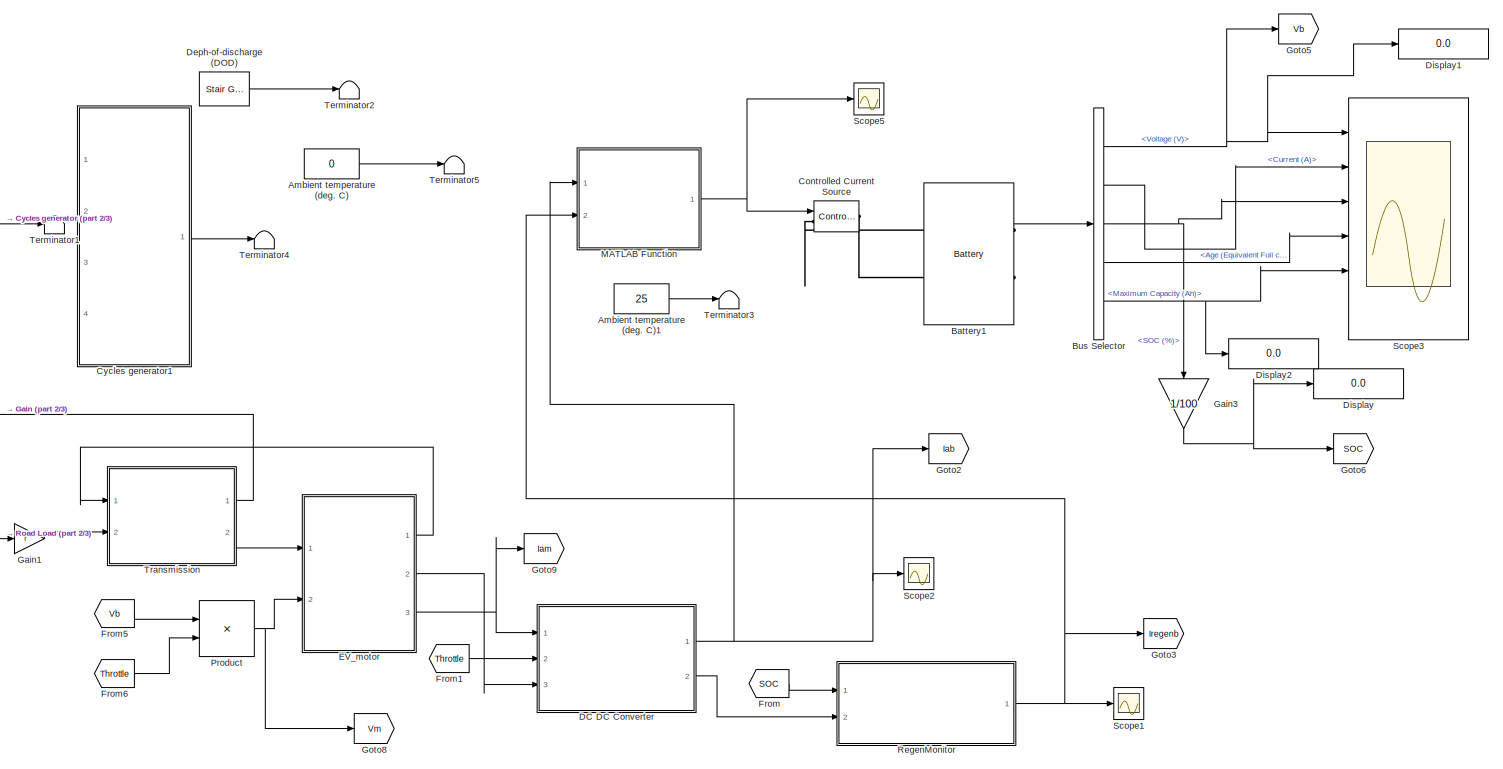
[diagram: root canvas - part 1/3, middle right region]
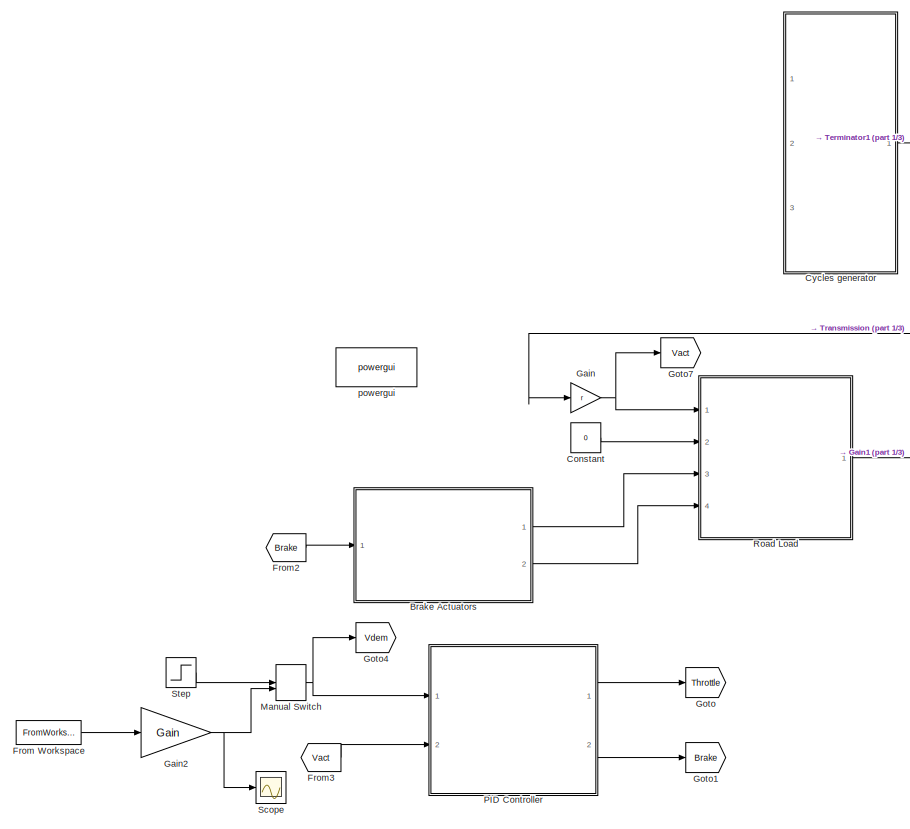
[diagram: root canvas - part 2/3, middle left region]
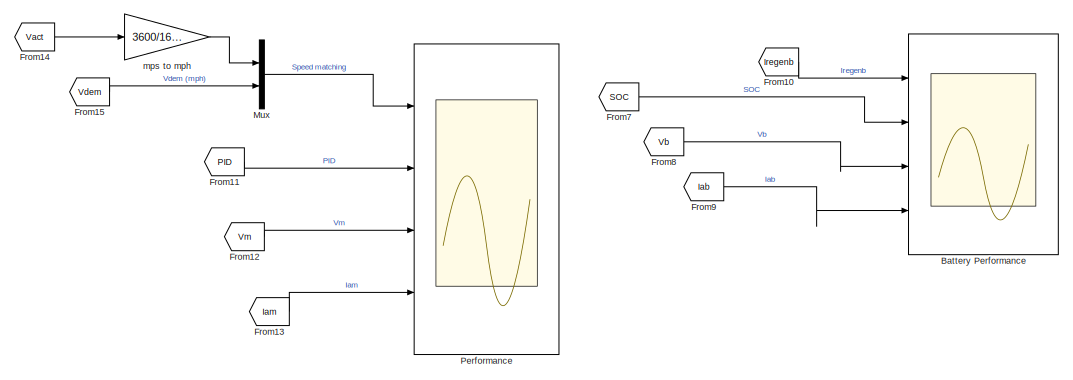
[diagram: root canvas - part 3/3, bottom right region]
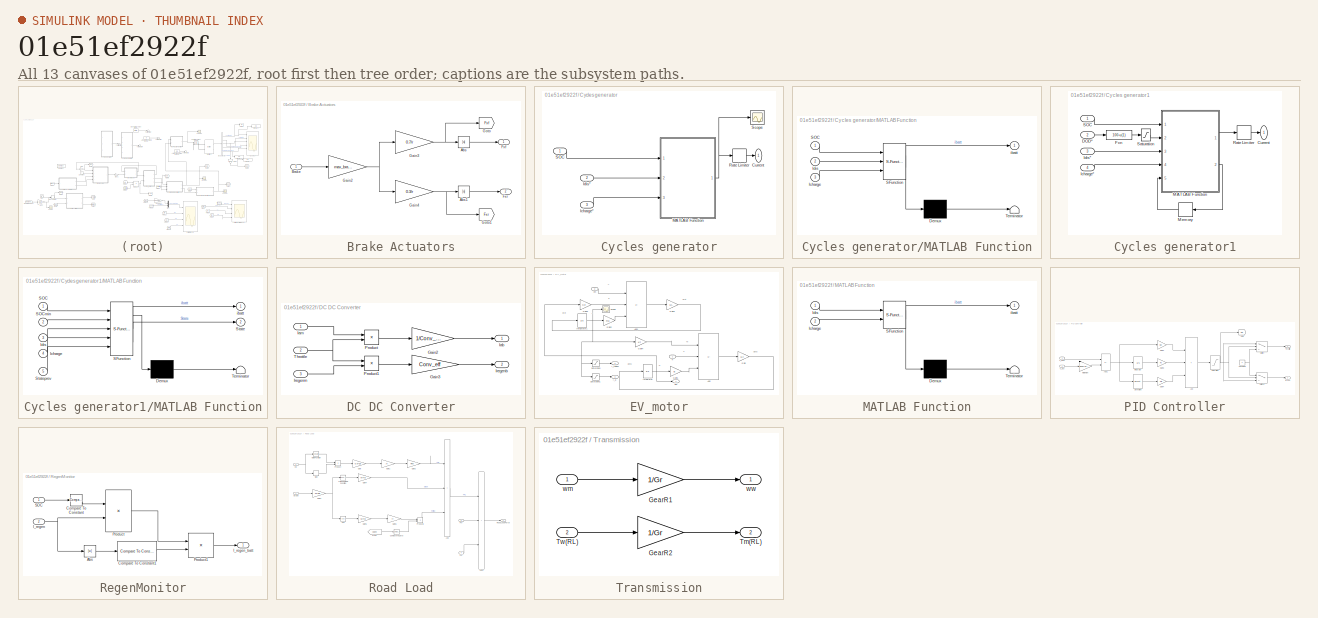
[diagram: thumbnail index - all 13 canvases of the model, root first then tree order]
MODEL slx_01e51ef2922f
KIND model
CONFIG AbsTol = auto
CONFIG EnableMultiTasking = off
CONFIG FixedStep = auto
CONFIG MaxStep = 1
CONFIG MinStep = auto
CONFIG RelTol = 1e-3
CONFIG SampleTimeConstraint = Unconstrained
CONFIG SolverName = ode23t
CONFIG StartTime = 0.0
CONFIG StopTime = simtime
BLOCK [Scope]  Performance
  Floating = off
  NumInputPorts = 4
  Ports = [4]
  ScopeSpecificationString = Simulink.scopes.TimeScopeBlockCfg('CurrentConfiguration', extmgr.ConfigurationSet(extmgr.Configuration('Core','General UI',true),extmgr.Configuration('Core','Source UI',true),extmgr.Configuration('Sources','WiredSimulink',true,'DataLoggingVariableName','ScopeData4'),extmgr.Configuration('Visuals','Time Domain',true,'SerializedDisplays',{struct('MinYLimReal','-7.13834','MaxYLimReal','63.80769','YLa...<+3456ch>
BLOCK [Constant] Ambient temperature (deg. C)
  Value = 0
BLOCK [Constant] Ambient temperature (deg. C)1
  Value = 25
BLOCK [Scope] Battery Performance
  Floating = off
  NumInputPorts = 4
  Ports = [4]
  ScopeSpecificationString = Simulink.scopes.TimeScopeBlockCfg('CurrentConfiguration', extmgr.ConfigurationSet(extmgr.Configuration('Core','General UI',true),extmgr.Configuration('Core','Source UI',true),extmgr.Configuration('Sources','WiredSimulink',true,'DataLoggingVariableName','ScopeData3'),extmgr.Configuration('Visuals','Time Domain',true,'SerializedDisplays',{struct('MinYLimReal','-1.00000','MaxYLimReal','1.00000','YLab...<+3699ch>
BLOCK [Reference] Battery1  REF=spsBatteryLib/Battery
  NameLocation = top
  Ports = [0, 1, 0, 0, 0, 2]
  SourceBlock = spsBatteryLib/Battery
  SourceProductBaseCode = PS
  SourceType = Battery
BLOCK [SubSystem] Brake Actuators
  Ports = [1, 2]
  RequestExecContextInheritance = off
BLOCK [Abs] Brake Actuators/Abs
  SaturateOnIntegerOverflow = off
BLOCK [Abs] Brake Actuators/Abs1
  SaturateOnIntegerOverflow = off
BLOCK [Inport] Brake Actuators/Brake
BLOCK [Outport] Brake Actuators/Fxf
BLOCK [Outport] Brake Actuators/Fxr
  Port = 2
BLOCK [Gain] Brake Actuators/Gain2
  Gain = max_brakeT
BLOCK [Gain] Brake Actuators/Gain3
  Gain = 0.7/r
BLOCK [Gain] Brake Actuators/Gain4
  Gain = 0.3/r
BLOCK [Goto] Brake Actuators/Goto
  GotoTag = Fxf
BLOCK [Goto] Brake Actuators/Goto1
  GotoTag = Fxr
BLOCK [BusSelector] Bus Selector
  OutputSignals = Voltage (V),Current (A),SOC (%),Age (Equivalent Full cycles),Maximum Capacity  (Ah)
  Ports = [1, 5]
BLOCK [Constant] Constant
  Value = 0
BLOCK [Reference] Controlled Current Source  REF=spsControlledCurrentSourceLib/Controlled Current Source
  Ports = [1, 0, 0, 0, 0, 1, 1]
  SourceBlock = spsControlledCurrentSourceLib/Controlled Current Source
  SourceProductBaseCode = PS
  SourceType = Controlled Current Source
BLOCK [SubSystem] Cycles generator
  NameLocation = top
  Ports = [3, 1]
  RequestExecContextInheritance = off
BLOCK [Outport] Cycles generator/Current
  NameLocation = top
  VectorParamsAs1DForOutWhenUnconnected = off
BLOCK [Inport] Cycles generator/Icharge*
  Port = 3
BLOCK [Inport] Cycles generator/Idis*
  Port = 2
BLOCK [SubSystem] Cycles generator/MATLAB Function
  ErrorFcn = Stateflow.Translate.translate
  PermitHierarchicalResolution = ExplicitOnly
  Ports = [3, 1]
  RequestExecContextInheritance = off
  SFBlockType = MATLAB Function
  TreatAsAtomicUnit = on
BLOCK [Demux] Cycles generator/MATLAB Function/ Demux 
  Outputs = 1
  Ports = [1, 1]
BLOCK [S-Function] Cycles generator/MATLAB Function/ SFunction 
  EnableBusSupport = on
  FunctionName = sf_sfun
  PortCounts = [3 2]
  Ports = [3, 2]
  SFcnIsStateOwnerBlock = off
  SFunctionDeploymentMode = off
  Tag = Stateflow S-Function 2
BLOCK [Terminator] Cycles generator/MATLAB Function/ Terminator 
BLOCK [Inport] Cycles generator/MATLAB Function/Icharge
  Port = 3
BLOCK [Inport] Cycles generator/MATLAB Function/Idis
  Port = 2
BLOCK [Inport] Cycles generator/MATLAB Function/SOC
BLOCK [Outport] Cycles generator/MATLAB Function/ibatt
  VectorParamsAs1DForOutWhenUnconnected = off
BLOCK [RateLimiter] Cycles generator/Rate Limiter
  FallingSlewLimit = -1000
  RisingSlewLimit = 1000
  SampleTimeMode = inherited
BLOCK [Inport] Cycles generator/SOC
BLOCK [Scope] Cycles generator/Scope
  Floating = off
  NumInputPorts = 1
  Ports = [1]
  ScopeSpecificationString = Simulink.scopes.TimeScopeBlockCfg('CurrentConfiguration', extmgr.ConfigurationSet(extmgr.Configuration('Core','General UI',true),extmgr.Configuration('Core','Source UI',true),extmgr.Configuration('Sources','WiredSimulink',true,'DataLoggingVariableName','ScopeData3'),extmgr.Configuration('Visuals','Time Domain',true,'SerializedDisplays',{struct('MinYLimReal','-1.00000','MaxYLimReal','1.00000','YLab...<+1374ch>
BLOCK [SubSystem] Cycles generator1
  NameLocation = top
  Ports = [4, 1]
  RequestExecContextInheritance = off
BLOCK [Outport] Cycles generator1/Current
  NameLocation = top
  VectorParamsAs1DForOutWhenUnconnected = off
BLOCK [Inport] Cycles generator1/DOD*
  Port = 2
BLOCK [Fcn] Cycles generator1/Fcn
  Expr = 100-u(1)
BLOCK [Inport] Cycles generator1/Icharge*
  Port = 4
BLOCK [Inport] Cycles generator1/Idis*
  Port = 3
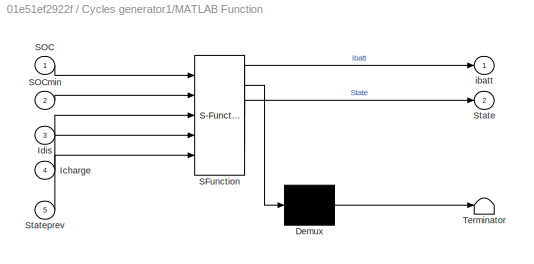
BLOCK [SubSystem] Cycles generator1/MATLAB Function
  ErrorFcn = Stateflow.Translate.translate
  PermitHierarchicalResolution = ExplicitOnly
  Ports = [5, 2]
  RequestExecContextInheritance = off
  SFBlockType = MATLAB Function
  TreatAsAtomicUnit = on
BLOCK [Demux] Cycles generator1/MATLAB Function/ Demux 
  Outputs = 1
  Ports = [1, 1]
BLOCK [S-Function] Cycles generator1/MATLAB Function/ SFunction 
  EnableBusSupport = on
  FunctionName = sf_sfun
  PortCounts = [5 3]
  Ports = [5, 3]
  SFcnIsStateOwnerBlock = off
  SFunctionDeploymentMode = off
  Tag = Stateflow S-Function 1
BLOCK [Terminator] Cycles generator1/MATLAB Function/ Terminator 
BLOCK [Inport] Cycles generator1/MATLAB Function/Icharge
  Port = 4
BLOCK [Inport] Cycles generator1/MATLAB Function/Idis
  Port = 3
BLOCK [Inport] Cycles generator1/MATLAB Function/SOC
BLOCK [Inport] Cycles generator1/MATLAB Function/SOCmin
  Port = 2
BLOCK [Outport] Cycles generator1/MATLAB Function/State
  Port = 2
  VectorParamsAs1DForOutWhenUnconnected = off
BLOCK [Inport] Cycles generator1/MATLAB Function/Stateprev
  Port = 5
BLOCK [Outport] Cycles generator1/MATLAB Function/ibatt
  VectorParamsAs1DForOutWhenUnconnected = off
BLOCK [Memory] Cycles generator1/Memory
  InitialCondition = 1
BLOCK [RateLimiter] Cycles generator1/Rate Limiter
  FallingSlewLimit = -1000
  RisingSlewLimit = 1000
  SampleTimeMode = inherited
BLOCK [Inport] Cycles generator1/SOC
BLOCK [Saturate] Cycles generator1/Saturation
  LowerLimit = 1
  UpperLimit = 98
BLOCK [SubSystem] DC DC Converter
  Ports = [3, 2]
  RequestExecContextInheritance = off
BLOCK [Gain] DC DC Converter/Gain2
  Gain = 1/Conv_eff
BLOCK [Gain] DC DC Converter/Gain3
  Gain = Conv_eff
BLOCK [Outport] DC DC Converter/Iab
BLOCK [Inport] DC DC Converter/Iam
BLOCK [Outport] DC DC Converter/Iregenb
  Port = 2
BLOCK [Inport] DC DC Converter/Iregenm
  Port = 3
BLOCK [Product] DC DC Converter/Product
  Ports = [2, 1]
BLOCK [Product] DC DC Converter/Product1
  Ports = [2, 1]
BLOCK [Inport] DC DC Converter/Throttle
  Port = 2
BLOCK [Reference] Deph-of-discharge (DOD)  REF=spsStairGeneratorLib/Stair
Generator
  Ports = [0, 1]
  SourceBlock = spsStairGeneratorLib/Stair\nGenerator
  SourceProductBaseCode = PS
  SourceType = Stair Generator
BLOCK [Display] Display
  Decimation = 1
  Ports = [1]
BLOCK [Display] Display1
  Decimation = 1
  Ports = [1]
BLOCK [Display] Display2
  Decimation = 1
  Ports = [1]
BLOCK [SubSystem] EV_motor
  Ports = [2, 3]
  RequestExecContextInheritance = off
BLOCK [Sum] EV_motor/Add
  IconShape = rectangular
  Inputs = +--
  Ports = [3, 1]
BLOCK [Sum] EV_motor/Add1
  IconShape = rectangular
  Inputs = +--
  Ports = [3, 1]
BLOCK [Gain] EV_motor/Gain
  Gain = 1/J
BLOCK [Gain] EV_motor/Gain1
  Gain = B
BLOCK [Gain] EV_motor/Gain2
  Gain = Ra
BLOCK [Gain] EV_motor/Gain3
  Gain = 1/L
BLOCK [Gain] EV_motor/Gain4
  Gain = Kt
BLOCK [Gain] EV_motor/Gain5
  Gain = Ke
BLOCK [Outport] EV_motor/I_a
  Port = 3
BLOCK [Outport] EV_motor/I_regen
  Port = 2
BLOCK [Integrator] EV_motor/Integrator
  Ports = [1, 1]
BLOCK [Integrator] EV_motor/Integrator1
  Ports = [1, 1]
BLOCK [Saturate] EV_motor/Saturation
  LowerLimit = -inf
  UpperLimit = 0
BLOCK [Saturate] EV_motor/Saturation1
  LowerLimit = 0
  UpperLimit = inf
BLOCK [Scope] EV_motor/Scope
  Floating = off
  NumInputPorts = 1
  Ports = [1]
  ScopeSpecificationString = Simulink.scopes.TimeScopeBlockCfg('CurrentConfiguration', extmgr.ConfigurationSet(extmgr.Configuration('Core','General UI',true),extmgr.Configuration('Core','Source UI',true),extmgr.Configuration('Sources','WiredSimulink',true),extmgr.Configuration('Visuals','Time Domain',true,'SerializedDisplays',{struct('MinYLimReal','-246.13568','MaxYLimReal','293.10629','YLabelReal','','MinYLimMag',' 0.00000',...<+1345ch>
BLOCK [Inport] EV_motor/Tl
BLOCK [Inport] EV_motor/Vm
  Port = 2
BLOCK [Outport] EV_motor/wm
BLOCK [From] From
  GotoTag = SOC
BLOCK [FromWorkspace] From Workspace
  VariableName = cyc_mph_2
BLOCK [From] From1
  GotoTag = Throttle
  TagVisibility = global
BLOCK [From] From10
  GotoTag = Iregenb
BLOCK [From] From11
  GotoTag = PID
  TagVisibility = global
BLOCK [From] From12
  GotoTag = Vm
  TagVisibility = global
BLOCK [From] From13
  GotoTag = Iam
  TagVisibility = global
BLOCK [From] From14
  GotoTag = Vact
  TagVisibility = global
BLOCK [From] From15
  GotoTag = Vdem
  TagVisibility = global
BLOCK [From] From2
  GotoTag = Brake
  TagVisibility = global
BLOCK [From] From3
  GotoTag = Vact
  TagVisibility = global
BLOCK [From] From5
  GotoTag = Vb
BLOCK [From] From6
  GotoTag = Throttle
  TagVisibility = global
BLOCK [From] From7
  GotoTag = SOC
BLOCK [From] From8
  GotoTag = Vb
BLOCK [From] From9
  GotoTag = Iab
BLOCK [Gain] Gain
  Gain = r
BLOCK [Gain] Gain1
  Gain = r
BLOCK [Gain] Gain2
  Gain = Gain
BLOCK [Gain] Gain3
  Gain = 1/100
  NameLocation = left
BLOCK [Goto] Goto
  GotoTag = Throttle
  TagVisibility = global
BLOCK [Goto] Goto1
  GotoTag = Brake
  TagVisibility = global
BLOCK [Goto] Goto2
  GotoTag = Iab
BLOCK [Goto] Goto3
  GotoTag = Iregenb
BLOCK [Goto] Goto4
  GotoTag = Vdem
  TagVisibility = global
BLOCK [Goto] Goto5
  GotoTag = Vb
BLOCK [Goto] Goto6
  GotoTag = SOC
BLOCK [Goto] Goto7
  GotoTag = Vact
  TagVisibility = global
BLOCK [Goto] Goto8
  GotoTag = Vm
  TagVisibility = global
BLOCK [Goto] Goto9
  GotoTag = Iam
  TagVisibility = global
BLOCK [SubSystem] MATLAB Function
  ErrorFcn = Stateflow.Translate.translate
  PermitHierarchicalResolution = ExplicitOnly
  Ports = [2, 1]
  RequestExecContextInheritance = off
  SFBlockType = MATLAB Function
  TreatAsAtomicUnit = on
BLOCK [Demux] MATLAB Function/ Demux 
  Outputs = 1
  Ports = [1, 1]
BLOCK [S-Function] MATLAB Function/ SFunction 
  EnableBusSupport = on
  FunctionName = sf_sfun
  PortCounts = [2 2]
  Ports = [2, 2]
  SFcnIsStateOwnerBlock = off
  SFunctionDeploymentMode = off
  Tag = Stateflow S-Function 3
BLOCK [Terminator] MATLAB Function/ Terminator 
BLOCK [Inport] MATLAB Function/Icharge
  Port = 2
BLOCK [Inport] MATLAB Function/Idis
BLOCK [Outport] MATLAB Function/ibatt
BLOCK [ManualSwitch] Manual Switch
  CurrentSetting = 0
BLOCK [Mux] Mux
  DisplayOption = bar
  Inputs = 2
  Ports = [2, 1]
BLOCK [SubSystem] PID Controller
  Ports = [2, 2]
  RequestExecContextInheritance = off
BLOCK [Sum] PID Controller/Add
  IconShape = rectangular
  Inputs = +++
  Ports = [3, 1]
BLOCK [Sum] PID Controller/Add1
  IconShape = rectangular
  Inputs = +-
  Ports = [2, 1]
BLOCK [Outport] PID Controller/Brake
  Port = 2
BLOCK [Constant] PID Controller/Constant1
  Value = 0
BLOCK [Derivative] PID Controller/Derivative
BLOCK [Gain] PID Controller/Gain2
  Gain = Kp
BLOCK [Gain] PID Controller/Gain3
  Gain = Ki
BLOCK [Gain] PID Controller/Gain4
  Gain = Kd
BLOCK [Goto] PID Controller/Goto
  GotoTag = PID
  TagVisibility = global
BLOCK [Integrator] PID Controller/Integrator
  Ports = [1, 1]
BLOCK [Saturate] PID Controller/Saturation
  LowerLimit = -1
  UpperLimit = 1
BLOCK [Switch] PID Controller/Switch
  Criteria = u2 > Threshold
  InputSameDT = off
  SaturateOnIntegerOverflow = off
BLOCK [Switch] PID Controller/Switch1
  Criteria = u2 > Threshold
  InputSameDT = off
  SaturateOnIntegerOverflow = off
BLOCK [Outport] PID Controller/Throttle
BLOCK [Inport] PID Controller/V_act
  Port = 2
BLOCK [Inport] PID Controller/V_dem
BLOCK [Gain] PID Controller/m//s to mph
  Gain = 3600/1600
BLOCK [Product] Product
  Ports = [2, 1]
BLOCK [SubSystem] RegenMonitor
  Ports = [2, 1]
  RequestExecContextInheritance = off
BLOCK [Abs] RegenMonitor/Abs
  SaturateOnIntegerOverflow = off
BLOCK [Reference] RegenMonitor/Compare To Constant  REF=simulink/Logic and Bit
Operations/Compare
To Constant
  Ports = [1, 1]
  SourceBlock = simulink/Logic and Bit\nOperations/Compare\nTo Constant
  SourceProductBaseCode = SL
  SourceType = Compare To Constant
BLOCK [Reference] RegenMonitor/Compare To Constant1  REF=simulink/Logic and Bit
Operations/Compare
To Constant
  Ports = [1, 1]
  SourceBlock = simulink/Logic and Bit\nOperations/Compare\nTo Constant
  SourceProductBaseCode = SL
  SourceType = Compare To Constant
BLOCK [Inport] RegenMonitor/I_regen
  Port = 2
BLOCK [Outport] RegenMonitor/I_regen_batt
BLOCK [Product] RegenMonitor/Product
  Ports = [2, 1]
BLOCK [Product] RegenMonitor/Product1
  Ports = [2, 1]
BLOCK [Inport] RegenMonitor/SOC
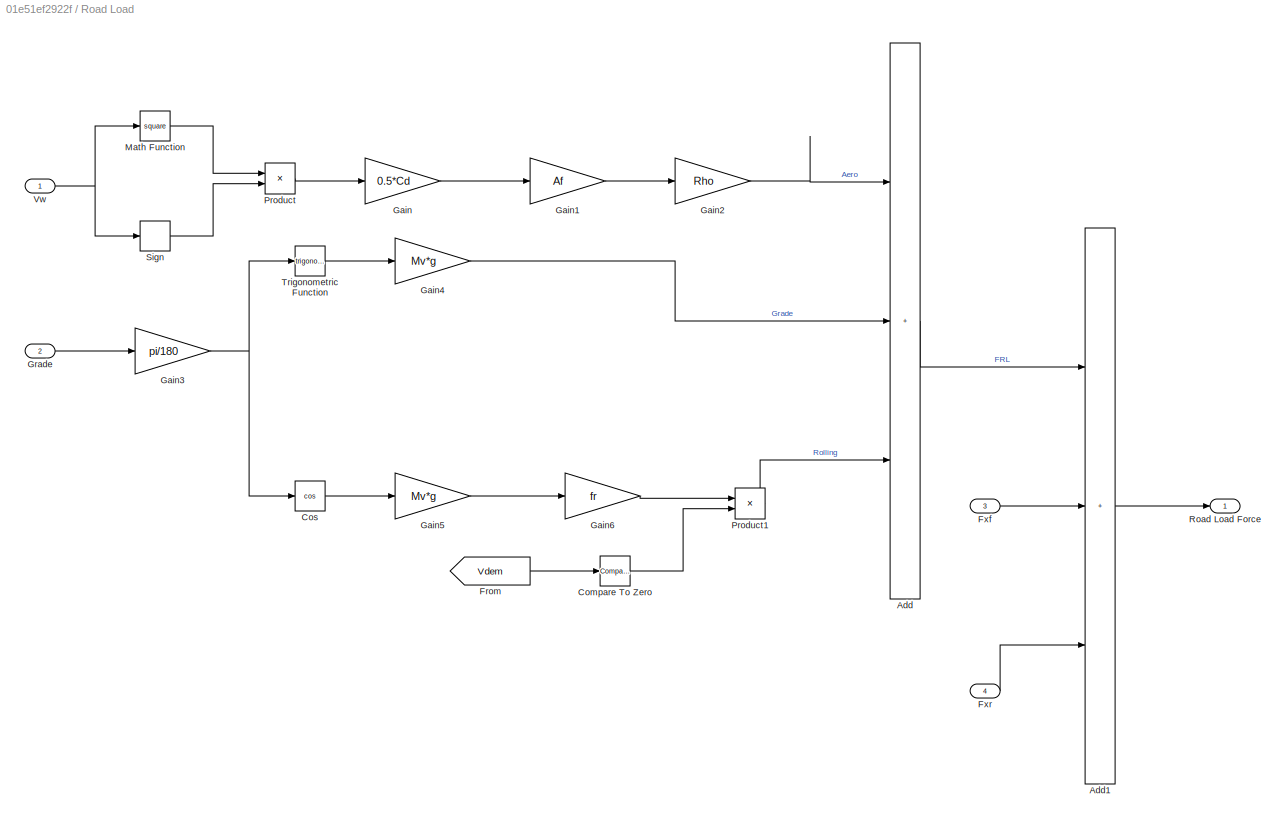
BLOCK [SubSystem] Road Load
  Ports = [4, 1]
  RequestExecContextInheritance = off
BLOCK [Sum] Road Load/Add
  IconShape = rectangular
  Inputs = +++
  Ports = [3, 1]
BLOCK [Sum] Road Load/Add1
  IconShape = rectangular
  Inputs = +++
  Ports = [3, 1]
BLOCK [Reference] Road Load/Compare To Zero  REF=simulink/Logic and Bit
Operations/Compare
To Zero
  Ports = [1, 1]
  SourceBlock = simulink/Logic and Bit\nOperations/Compare\nTo Zero
  SourceProductBaseCode = SL
  SourceType = Compare To Zero
BLOCK [Trigonometry] Road Load/Cos
  Operator = cos
  Ports = [1, 1]
BLOCK [From] Road Load/From
  GotoTag = Vdem
  TagVisibility = global
BLOCK [Inport] Road Load/Fxf
  Port = 3
BLOCK [Inport] Road Load/Fxr
  Port = 4
BLOCK [Gain] Road Load/Gain
  Gain = 0.5*Cd
BLOCK [Gain] Road Load/Gain1
  Gain = Af
BLOCK [Gain] Road Load/Gain2
  Gain = Rho
BLOCK [Gain] Road Load/Gain3
  Gain = pi/180
BLOCK [Gain] Road Load/Gain4
  Gain = Mv*g
BLOCK [Gain] Road Load/Gain5
  Gain = Mv*g
BLOCK [Gain] Road Load/Gain6
  Gain = fr
BLOCK [Inport] Road Load/Grade
  Port = 2
BLOCK [Math] Road Load/Math Function
  Operator = square
  Ports = [1, 1]
BLOCK [Product] Road Load/Product
  Ports = [2, 1]
BLOCK [Product] Road Load/Product1
  Ports = [2, 1]
BLOCK [Outport] Road Load/Road Load Force
BLOCK [Signum] Road Load/Sign
BLOCK [Trigonometry] Road Load/Trigonometric Function
  Ports = [1, 1]
BLOCK [Inport] Road Load/Vw
BLOCK [Scope] Scope
  Floating = off
  NumInputPorts = 1
  Ports = [1]
  ScopeSpecificationString = Simulink.scopes.TimeScopeBlockCfg('CurrentConfiguration', extmgr.ConfigurationSet(extmgr.Configuration('Core','General UI',true),extmgr.Configuration('Core','Source UI',true),extmgr.Configuration('Sources','WiredSimulink',true,'DataLoggingVariableName','ScopeData1'),extmgr.Configuration('Visuals','Time Domain',true,'SerializedDisplays',{struct('MinYLimReal','-7.0875','MaxYLimReal','63.7875','YLabe...<+1362ch>
BLOCK [Scope] Scope1
  Floating = off
  NumInputPorts = 1
  Ports = [1]
  ScopeSpecificationString = Simulink.scopes.TimeScopeBlockCfg('CurrentConfiguration', extmgr.ConfigurationSet(extmgr.Configuration('Core','General UI',true),extmgr.Configuration('Core','Source UI',true),extmgr.Configuration('Sources','WiredSimulink',true,'DataLoggingVariableName','ScopeData2'),extmgr.Configuration('Visuals','Time Domain',true,'SerializedDisplays',{struct('MinYLimReal','-1.00000','MaxYLimReal','1.00000','YLab...<+1371ch>
BLOCK [Scope] Scope2
  Floating = off
  NumInputPorts = 1
  Ports = [1]
  ScopeSpecificationString = Simulink.scopes.TimeScopeBlockCfg('CurrentConfiguration', extmgr.ConfigurationSet(extmgr.Configuration('Core','General UI',true),extmgr.Configuration('Core','Source UI',true),extmgr.Configuration('Sources','WiredSimulink',true,'DataLoggingVariableName','ScopeData3'),extmgr.Configuration('Visuals','Time Domain',true,'SerializedDisplays',{struct('MinYLimReal','-20.27068','MaxYLimReal','182.43616','Y...<+1466ch>
BLOCK [Scope] Scope3
  Floating = off
  NumInputPorts = 6
  Ports = [6]
  ScopeSpecificationString = Simulink.scopes.TimeScopeBlockCfg('CurrentConfiguration', extmgr.ConfigurationSet(extmgr.Configuration('Core','General UI',true),extmgr.Configuration('Core','Source UI',true),extmgr.Configuration('Sources','WiredSimulink',true,'DataLoggingVariableName','ScopeData1'),extmgr.Configuration('Visuals','Time Domain',true,'SerializedDisplays',{struct('MinYLimReal','-61.15536','MaxYLimReal','500.09203','Y...<+4889ch>
BLOCK [Scope] Scope5
  Floating = off
  NumInputPorts = 1
  Ports = [1]
  ScopeSpecificationString = Simulink.scopes.TimeScopeBlockCfg('CurrentConfiguration', extmgr.ConfigurationSet(extmgr.Configuration('Core','General UI',true),extmgr.Configuration('Core','Source UI',true),extmgr.Configuration('Sources','WiredSimulink',true,'DataLoggingVariableName','ScopeData2'),extmgr.Configuration('Visuals','Time Domain',true,'SerializedDisplays',{struct('MinYLimReal','-20.27068','MaxYLimReal','182.43616','Y...<+1464ch>
BLOCK [Step] Step
  After = 100
  SampleTime = 0
  Time = 0
BLOCK [Terminator] Terminator1
BLOCK [Terminator] Terminator2
BLOCK [Terminator] Terminator3
BLOCK [Terminator] Terminator4
BLOCK [Terminator] Terminator5
BLOCK [SubSystem] Transmission
  Ports = [2, 2]
  RequestExecContextInheritance = off
BLOCK [Gain] Transmission/GearR1
  Gain = 1/Gr
BLOCK [Gain] Transmission/GearR2
  Gain = 1/Gr
BLOCK [Outport] Transmission/Tm(RL)
  Port = 2
BLOCK [Inport] Transmission/Tw(RL)
  Port = 2
BLOCK [Inport] Transmission/wm
BLOCK [Outport] Transmission/ww
BLOCK [Gain] mps to mph
  Gain = 3600/1600
BLOCK [Reference] powergui  REF=spspowerguiLib/powergui
  Ports = []
  Priority = 1
  SourceBlock = spspowerguiLib/powergui
  SourceProductBaseCode = PS
  SourceType = PSB option menu block
ANNOTATION EV_motor: E
ANNOTATION EV_motor: Te
ANNOTATION EV_motor: Tl
ANNOTATION EV_motor: V
ANNOTATION EV_motor: alpha
ANNOTATION EV_motor: di/dt
ANNOTATION EV_motor: i
ANNOTATION EV_motor: w
LINE Ambient temperature (deg. C)1:1 -> Terminator3:1
LINE Ambient temperature (deg. C):1 -> Terminator5:1
LINE Battery1:1 -> Bus Selector:1
LINE Brake Actuators/Abs1:1 -> Brake Actuators/Fxr:1
LINE Brake Actuators/Abs:1 -> Brake Actuators/Fxf:1
LINE Brake Actuators/Brake:1 -> Brake Actuators/Gain2:1
NET Brake Actuators/Gain2:1 -> Brake Actuators/Gain3:1, Brake Actuators/Gain4:1
NET Brake Actuators/Gain3:1 -> Brake Actuators/Abs:1, Brake Actuators/Goto:1
NET Brake Actuators/Gain4:1 -> Brake Actuators/Abs1:1, Brake Actuators/Goto1:1
LINE Brake Actuators:1 -> Road Load:3
LINE Brake Actuators:2 -> Road Load:4
NET Bus Selector:1 -> Display1:1, Goto5:1, Scope3:1
LINE Bus Selector:2 -> Scope3:2
NET Bus Selector:3 -> Gain3:1, Scope3:3
LINE Bus Selector:4 -> Scope3:4
NET Bus Selector:5 -> Display2:1, Scope3:5
LINE Constant:1 -> Road Load:2
LINE Cycles generator/Icharge*:1 -> Cycles generator/MATLAB Function:3
LINE Cycles generator/Idis*:1 -> Cycles generator/MATLAB Function:2
NET Cycles generator/MATLAB Function:1 -> Cycles generator/Rate Limiter:1, Cycles generator/Scope:1
LINE Cycles generator/Rate Limiter:1 -> Cycles generator/Current:1
LINE Cycles generator/SOC:1 -> Cycles generator/MATLAB Function:1
LINE Cycles generator1/DOD*:1 -> Cycles generator1/Fcn:1
LINE Cycles generator1/Fcn:1 -> Cycles generator1/Saturation:1
LINE Cycles generator1/Icharge*:1 -> Cycles generator1/MATLAB Function:4
LINE Cycles generator1/Idis*:1 -> Cycles generator1/MATLAB Function:3
LINE Cycles generator1/MATLAB Function:1 -> Cycles generator1/Rate Limiter:1
LINE Cycles generator1/MATLAB Function:2 -> Cycles generator1/Memory:1
LINE Cycles generator1/Memory:1 -> Cycles generator1/MATLAB Function:5
LINE Cycles generator1/Rate Limiter:1 -> Cycles generator1/Current:1
LINE Cycles generator1/SOC:1 -> Cycles generator1/MATLAB Function:1
LINE Cycles generator1/Saturation:1 -> Cycles generator1/MATLAB Function:2
LINE Cycles generator1:1 -> Terminator4:1
LINE Cycles generator:1 -> Terminator1:1
LINE DC DC Converter/Gain2:1 -> DC DC Converter/Iab:1
LINE DC DC Converter/Gain3:1 -> DC DC Converter/Iregenb:1
LINE DC DC Converter/Iam:1 -> DC DC Converter/Product:1
LINE DC DC Converter/Iregenm:1 -> DC DC Converter/Product1:2
LINE DC DC Converter/Product1:1 -> DC DC Converter/Gain3:1
LINE DC DC Converter/Product:1 -> DC DC Converter/Gain2:1
NET DC DC Converter/Throttle:1 -> DC DC Converter/Product1:1, DC DC Converter/Product:2
NET DC DC Converter:1 -> Goto2:1, MATLAB Function:1, Scope2:1
LINE DC DC Converter:2 -> RegenMonitor:2
LINE Deph-of-discharge (DOD):1 -> Terminator2:1
LINE EV_motor/Add1:1 -> EV_motor/Gain3:1
LINE EV_motor/Add:1 -> EV_motor/Gain:1
LINE EV_motor/Gain1:1 -> EV_motor/Add:3
LINE EV_motor/Gain2:1 -> EV_motor/Add1:3
LINE EV_motor/Gain3:1 -> EV_motor/Integrator1:1
LINE EV_motor/Gain4:1 -> EV_motor/Add:1
LINE EV_motor/Gain5:1 -> EV_motor/Add1:2
LINE EV_motor/Gain:1 -> EV_motor/Integrator:1
NET EV_motor/Integrator1:1 -> EV_motor/Gain2:1, EV_motor/Gain4:1, EV_motor/Saturation1:1, EV_motor/Saturation:1, EV_motor/Scope:1
NET EV_motor/Integrator:1 -> EV_motor/Gain1:1, EV_motor/Gain5:1, EV_motor/wm:1
LINE EV_motor/Saturation1:1 -> EV_motor/I_a:1
LINE EV_motor/Saturation:1 -> EV_motor/I_regen:1
LINE EV_motor/Tl:1 -> EV_motor/Add:2
LINE EV_motor/Vm:1 -> EV_motor/Add1:1
LINE EV_motor:1 -> Transmission:1
LINE EV_motor:2 -> DC DC Converter:3
NET EV_motor:3 -> DC DC Converter:1, Goto9:1
LINE From Workspace:1 -> Gain2:1
LINE From10:1 -> Battery Performance:1
LINE From11:1 ->  Performance:2
LINE From12:1 ->  Performance:3
LINE From13:1 ->  Performance:4
LINE From14:1 -> mps to mph:1
LINE From15:1 -> Mux:2
LINE From1:1 -> DC DC Converter:2
LINE From2:1 -> Brake Actuators:1
LINE From3:1 -> PID Controller:2
LINE From5:1 -> Product:1
LINE From6:1 -> Product:2
LINE From7:1 -> Battery Performance:2
LINE From8:1 -> Battery Performance:3
LINE From9:1 -> Battery Performance:4
LINE From:1 -> RegenMonitor:1
LINE Gain1:1 -> Transmission:2
NET Gain2:1 -> Manual Switch:2, Scope:1
NET Gain3:1 -> Display:1, Goto6:1
NET Gain:1 -> Goto7:1, Road Load:1
NET MATLAB Function:1 -> Controlled Current Source:1, Scope5:1
NET Manual Switch:1 -> Goto4:1, PID Controller:1
LINE Mux:1 ->  Performance:1
NET PID Controller/Add1:1 -> PID Controller/Derivative:1, PID Controller/Gain2:1, PID Controller/Integrator:1
LINE PID Controller/Add:1 -> PID Controller/Saturation:1
NET PID Controller/Constant1:1 -> PID Controller/Switch1:1, PID Controller/Switch:3
LINE PID Controller/Derivative:1 -> PID Controller/Gain4:1
LINE PID Controller/Gain2:1 -> PID Controller/Add:1
LINE PID Controller/Gain3:1 -> PID Controller/Add:2
LINE PID Controller/Gain4:1 -> PID Controller/Add:3
LINE PID Controller/Integrator:1 -> PID Controller/Gain3:1
NET PID Controller/Saturation:1 -> PID Controller/Goto:1, PID Controller/Switch1:2, PID Controller/Switch1:3, PID Controller/Switch:1, PID Controller/Switch:2
LINE PID Controller/Switch1:1 -> PID Controller/Brake:1
LINE PID Controller/Switch:1 -> PID Controller/Throttle:1
LINE PID Controller/V_act:1 -> PID Controller/m//s to mph:1
LINE PID Controller/V_dem:1 -> PID Controller/Add1:1
LINE PID Controller/m//s to mph:1 -> PID Controller/Add1:2
LINE PID Controller:1 -> Goto:1
LINE PID Controller:2 -> Goto1:1
NET Product:1 -> EV_motor:2, Goto8:1
LINE RegenMonitor/Abs:1 -> RegenMonitor/Compare To Constant1:1
LINE RegenMonitor/Compare To Constant1:1 -> RegenMonitor/Product1:2
LINE RegenMonitor/Compare To Constant:1 -> RegenMonitor/Product:1
NET RegenMonitor/I_regen:1 -> RegenMonitor/Abs:1, RegenMonitor/Product:2
LINE RegenMonitor/Product1:1 -> RegenMonitor/I_regen_batt:1
LINE RegenMonitor/Product:1 -> RegenMonitor/Product1:1
LINE RegenMonitor/SOC:1 -> RegenMonitor/Compare To Constant:1
NET RegenMonitor:1 -> Goto3:1, MATLAB Function:2, Scope1:1
LINE Road Load/Add1:1 -> Road Load/Road Load Force:1
LINE Road Load/Add:1 -> Road Load/Add1:1
LINE Road Load/Compare To Zero:1 -> Road Load/Product1:2
LINE Road Load/Cos:1 -> Road Load/Gain5:1
LINE Road Load/From:1 -> Road Load/Compare To Zero:1
LINE Road Load/Fxf:1 -> Road Load/Add1:2
LINE Road Load/Fxr:1 -> Road Load/Add1:3
LINE Road Load/Gain1:1 -> Road Load/Gain2:1
LINE Road Load/Gain2:1 -> Road Load/Add:1
NET Road Load/Gain3:1 -> Road Load/Cos:1, Road Load/Trigonometric Function:1
LINE Road Load/Gain4:1 -> Road Load/Add:2
LINE Road Load/Gain5:1 -> Road Load/Gain6:1
LINE Road Load/Gain6:1 -> Road Load/Product1:1
LINE Road Load/Gain:1 -> Road Load/Gain1:1
LINE Road Load/Grade:1 -> Road Load/Gain3:1
LINE Road Load/Math Function:1 -> Road Load/Product:1
LINE Road Load/Product1:1 -> Road Load/Add:3
LINE Road Load/Product:1 -> Road Load/Gain:1
LINE Road Load/Sign:1 -> Road Load/Product:2
LINE Road Load/Trigonometric Function:1 -> Road Load/Gain4:1
NET Road Load/Vw:1 -> Road Load/Math Function:1, Road Load/Sign:1
LINE Road Load:1 -> Gain1:1
LINE Step:1 -> Manual Switch:1
LINE Transmission/GearR1:1 -> Transmission/ww:1
LINE Transmission/GearR2:1 -> Transmission/Tm(RL):1
LINE Transmission/Tw(RL):1 -> Transmission/GearR2:1
LINE Transmission/wm:1 -> Transmission/GearR1:1
LINE Transmission:1 -> Gain:1
LINE Transmission:2 -> EV_motor:1
LINE mps to mph:1 -> Mux:1
PLINE Battery1:LConn1 -- Controlled Current Source:LConn1
PLINE Battery1:LConn2 -- Controlled Current Source:RConn1
note: NET lines group one-source signal fan-out (src -> all destinations, sorted); 1:1 wires keep LINE
CHART Cycles generator1/MATLAB Function states=1 transitions=1
  STATE_LABEL 'eML_blk_kernel()'
  STATE_LABEL 'SCRIPT:\nfunction [ibatt,State] = fcn(SOC,SOCmin,Idis,Icharge,Stateprev)\n%#codegen\nState=Stateprev;\nif(Stateprev==1 && SOC<=SOCmin)\n    State=0;\nend\nif(Stateprev==0 && SOC>=99)\n    State=1;\nend\nif (Stateprev==1)\n    ibatt=Idis;\nelse\n    ibatt=-Icharge;\nend\n'
CHART Cycles generator/MATLAB Function states=1 transitions=1
  STATE_LABEL 'eML_blk_kernel()'
  STATE_LABEL 'SCRIPT:\nfunction ibatt = fcn(SOC,Idis,Icharge)\n%#codegen\n%State=Stateprev;\n% if(Stateprev==1 && SOC<=SOCmin)\n%     State=0;\n% end\n% if(Stateprev==0 && SOC>=99)\n%      State=1;\n% end\nif (SOC>=0.2 && SOC<=0.8)\n    ibatt=Idis;\nelse\n    ibatt=-Icharge;\nend\n'
CHART MATLAB Function states=1 transitions=1
  STATE_LABEL 'eML_blk_kernel()'
  STATE_LABEL 'SCRIPT:\nfunction ibatt  = fcn(Idis,Icharge)\n\nif Idis>0\n    ibatt = Idis;\nelse\n    ibatt = -Icharge;\nend\n\n\n'
CHART  states=0 transitions=0
CHART  states=0 transitions=0
CHART  states=0 transitions=0
